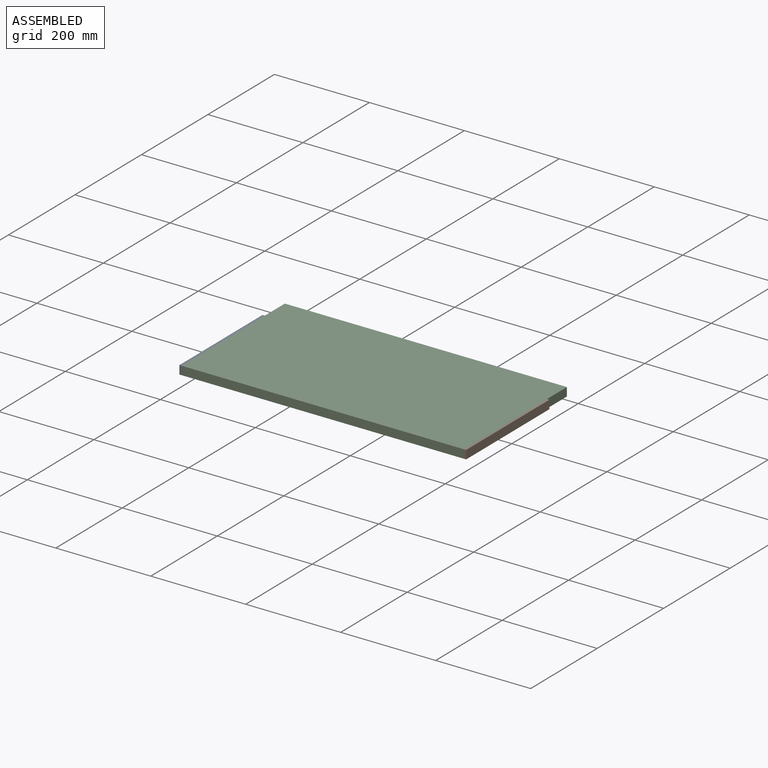
[diagram: assembled view]
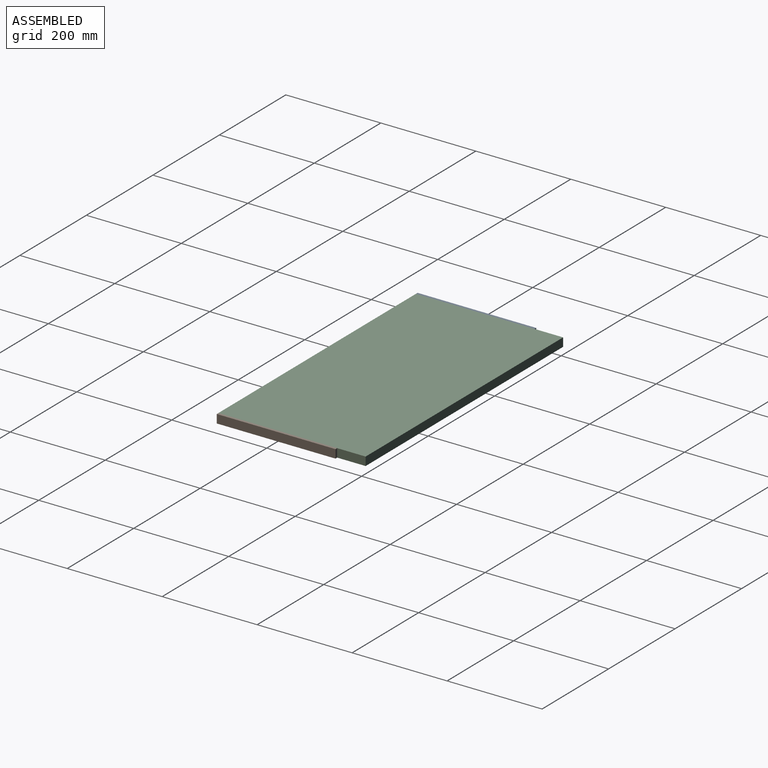
[diagram: assembled view, second angle]
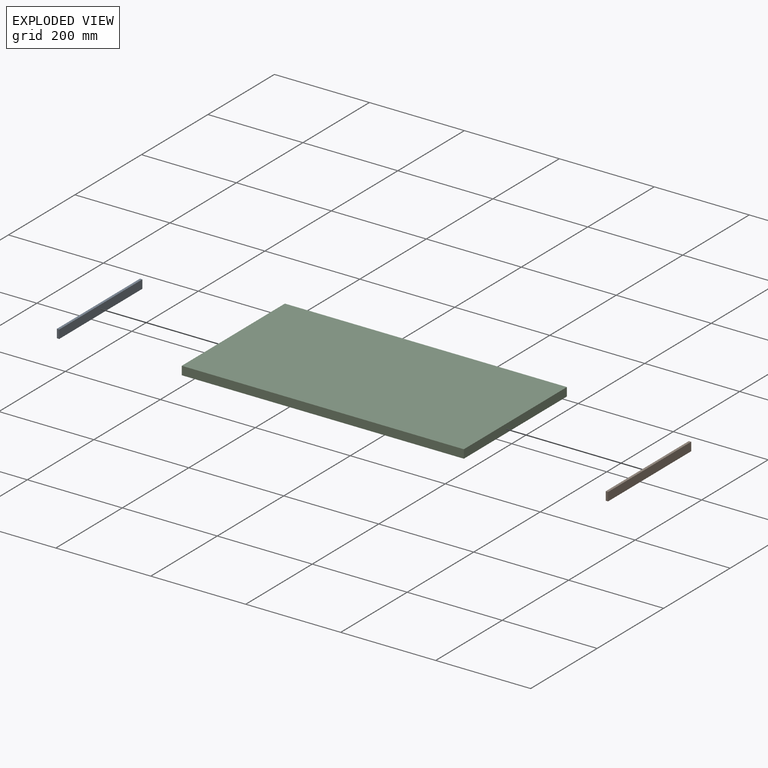
[diagram: exploded view]
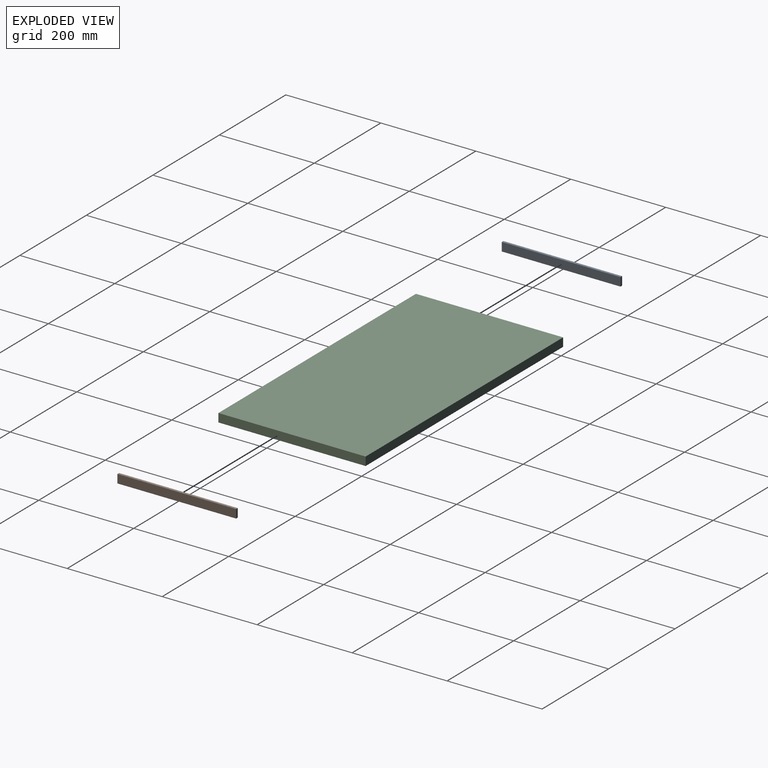
[diagram: exploded view, second angle]
ASSEMBLY  parts=3 mates=2
PART A: 6 faces, bbox 5x250x18 mm
  f0: plane 250x18mm, normal (-1,0,0), area 4500mm2, adj f1,f3,f4,f5
  f1: plane 18x5mm, normal (0,-1,0), area 90mm2, adj f0,f2,f4,f5
  f2: plane 250x18mm, normal (1,0,0), area 4500mm2, adj f1,f3,f4,f5
  f3: plane 18x5mm, normal (0,1,0), area 90mm2, adj f0,f2,f4,f5
  f4: plane 250x5mm, normal (0,0,1), area 1250mm2, adj f0,f1,f2,f3
  f5: plane 250x5mm, normal (0,0,-1), area 1250mm2, adj f0,f1,f2,f3
PART B: same geometry as A
PART C: 6 faces, bbox 594x310x18 mm
  f0: plane 594x18mm, normal (0,1,0), area 10692mm2, adj f1,f3,f4,f5
  f1: plane 310x18mm, normal (-1,0,0), area 5580mm2, adj f0,f2,f4,f5
  f2: plane 594x18mm, normal (0,-1,0), area 10692mm2, adj f1,f3,f4,f5
  f3: plane 310x18mm, normal (1,0,0), area 5580mm2, adj f0,f2,f4,f5
  f4: plane 594x310mm, normal (0,0,1), area 184140mm2, adj f0,f1,f2,f3
  f5: plane 594x310mm, normal (0,0,-1), area 184140mm2, adj f0,f1,f2,f3
PLACE A t=(52.35,-65.59,24.56)mm
PLACE B rot(axis=(0,0,1),180deg) t=(-686.15,-315.59,24.56)mm
PLACE C t=(-962.91,-572.81,24.56)mm
MATE fastened A.f2 <-> C.f1  axis (1,0,0) through (-613.9,-315.59,24.56)mm
MATE fastened B.f2 <-> C.f3  axis (-1,0,0) through (-19.9,-315.59,24.56)mm
